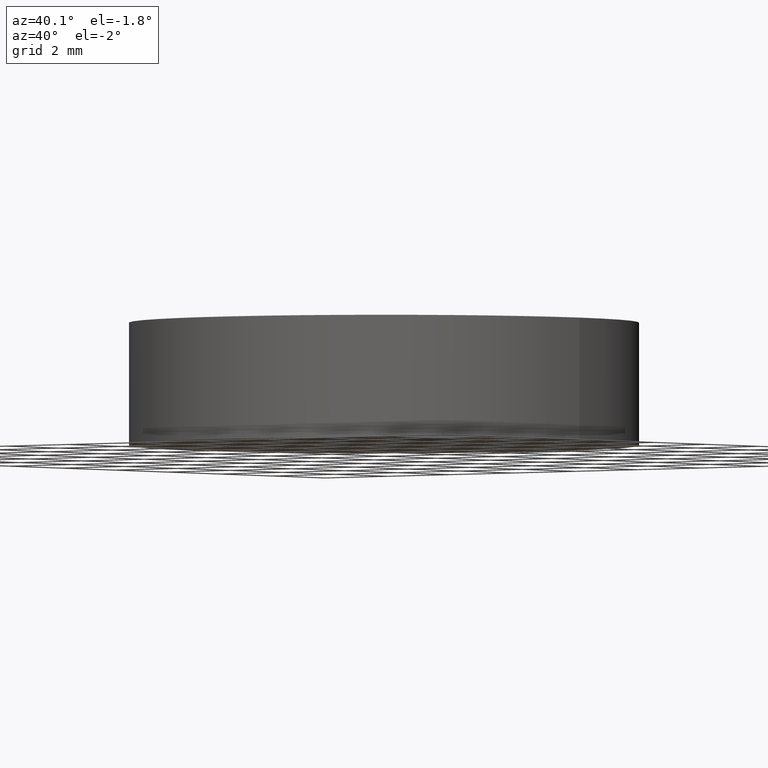
[diagram: clean part render]
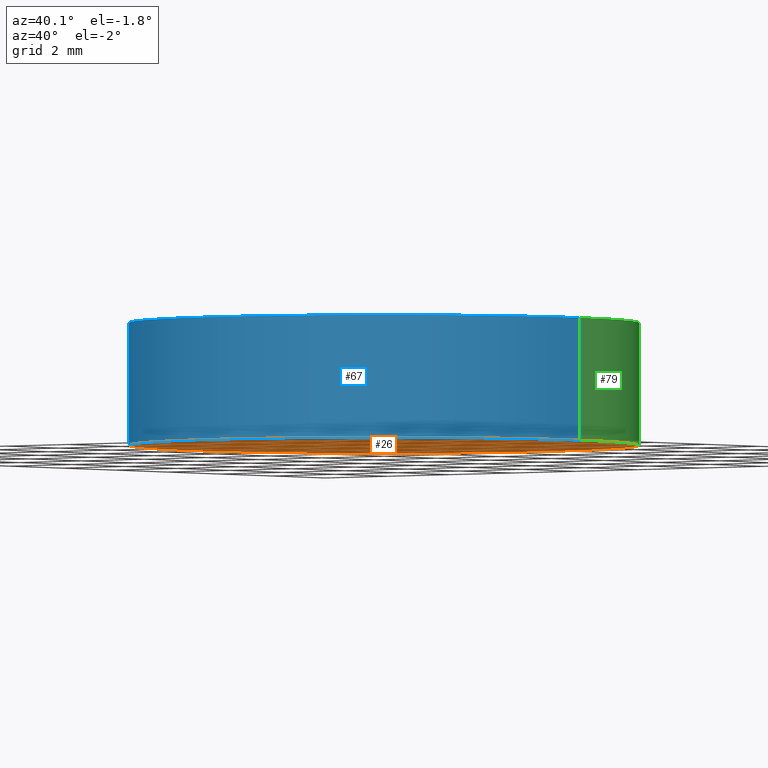
[diagram: same view with three faces highlighted in distinct colors, each labeled with its STEP entity id]
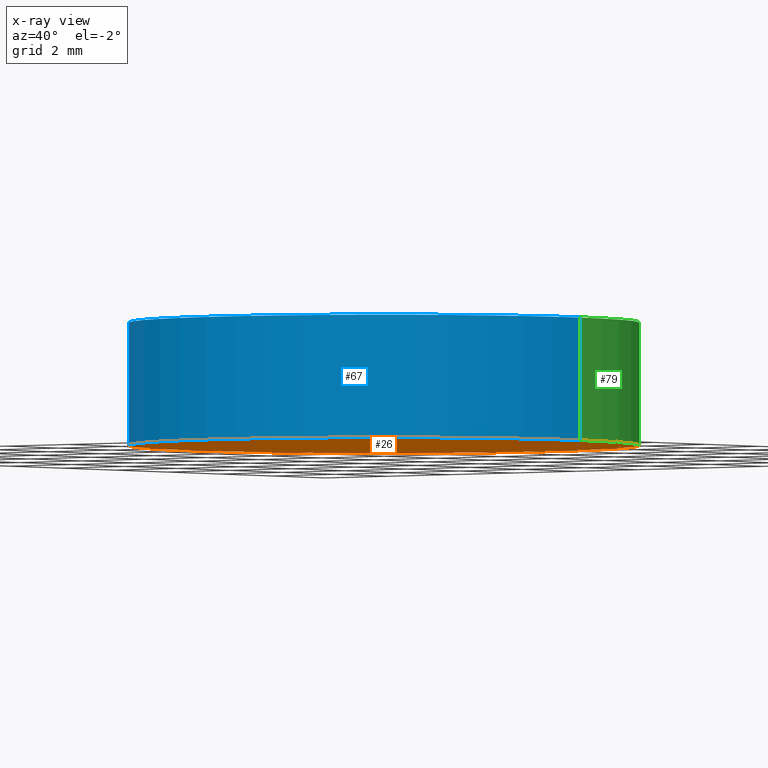
[diagram: x-ray of the same camera — body ghosted, the three highlighted faces saturated]
A machine part, auxiliary view with three faces highlighted in distinct colors.
The next image is the same camera in x-ray (body ghosted, the three faces saturated) — at least one of them is partly hidden behind the body in this view.
Their STEP definitions:

[orange] entity #26 — the highlighted planar face has unit normal (0, 0, 1).
#6 = AXIS2_PLACEMENT_3D ( 'NONE', #46, #34, #118 ) ;
#19 = DIRECTION ( 'NONE',  ( 1.000000000000000000, 0.0000000000000000000, 0.0000000000000000000 ) ) ;
#20 = CIRCLE ( 'NONE', #139, 6.250000000000000000 ) ;
#26 = ADVANCED_FACE ( 'NONE', ( #99 ), #55, .F. ) ;
#27 = CARTESIAN_POINT ( 'NONE',  ( 0.0000000000000000000, 0.0000000000000000000, 0.0000000000000000000 ) ) ;
#28 = CIRCLE ( 'NONE', #86, 6.250000000000000000 ) ;
#34 = DIRECTION ( 'NONE',  ( 0.0000000000000000000, 0.0000000000000000000, 1.000000000000000000 ) ) ;
#43 = CARTESIAN_POINT ( 'NONE',  ( 0.0000000000000000000, 0.0000000000000000000, 0.0000000000000000000 ) ) ;
#46 = CARTESIAN_POINT ( 'NONE',  ( 0.0000000000000000000, 0.0000000000000000000, 0.0000000000000000000 ) ) ;
#55 = PLANE ( 'NONE',  #6 ) ;
#56 = EDGE_LOOP ( 'NONE', ( #108, #73 ) ) ;
#57 = EDGE_CURVE ( 'NONE', #134, #82, #20, .T. ) ;
#73 = ORIENTED_EDGE ( 'NONE', *, *, #104, .F. ) ;
#78 = CARTESIAN_POINT ( 'NONE',  ( 6.250000000000000000, 7.654042494670957600E-016, 0.0000000000000000000 ) ) ;
#82 = VERTEX_POINT ( 'NONE', #78 ) ;
#86 = AXIS2_PLACEMENT_3D ( 'NONE', #43, #114, #102 ) ;
#92 = DIRECTION ( 'NONE',  ( 0.0000000000000000000, 0.0000000000000000000, 1.000000000000000000 ) ) ;
#99 = FACE_OUTER_BOUND ( 'NONE', #56, .T. ) ;
#102 = DIRECTION ( 'NONE',  ( 1.000000000000000000, 0.0000000000000000000, 0.0000000000000000000 ) ) ;
#104 = EDGE_CURVE ( 'NONE', #82, #134, #28, .T. ) ;
#108 = ORIENTED_EDGE ( 'NONE', *, *, #57, .F. ) ;
#114 = DIRECTION ( 'NONE',  ( 0.0000000000000000000, 0.0000000000000000000, 1.000000000000000000 ) ) ;
#118 = DIRECTION ( 'NONE',  ( 1.000000000000000000, 0.0000000000000000000, -0.0000000000000000000 ) ) ;
#134 = VERTEX_POINT ( 'NONE', #137 ) ;
#137 = CARTESIAN_POINT ( 'NONE',  ( -6.250000000000000000, 0.0000000000000000000, 0.0000000000000000000 ) ) ;
#139 = AXIS2_PLACEMENT_3D ( 'NONE', #27, #92, #19 ) ;

[blue] entity #67 — the highlighted cylindrical surface (partial cylindrical patch) has radius 6.25 mm, axis along (-0, -0, -1).
#7 = CIRCLE ( 'NONE', #58, 6.250000000000000000 ) ;
#11 = EDGE_CURVE ( 'NONE', #109, #134, #133, .T. ) ;
#14 = ORIENTED_EDGE ( 'NONE', *, *, #74, .F. ) ;
#19 = DIRECTION ( 'NONE',  ( 1.000000000000000000, 0.0000000000000000000, 0.0000000000000000000 ) ) ;
#20 = CIRCLE ( 'NONE', #139, 6.250000000000000000 ) ;
#21 = LINE ( 'NONE', #105, #110 ) ;
#25 = DIRECTION ( 'NONE',  ( 0.0000000000000000000, 0.0000000000000000000, 1.000000000000000000 ) ) ;
#27 = CARTESIAN_POINT ( 'NONE',  ( 0.0000000000000000000, 0.0000000000000000000, 0.0000000000000000000 ) ) ;
#36 = DIRECTION ( 'NONE',  ( -0.0000000000000000000, -0.0000000000000000000, -1.000000000000000000 ) ) ;
#44 = CARTESIAN_POINT ( 'NONE',  ( 6.250000000000000000, 7.654042494670957600E-016, 3.000000000000000000 ) ) ;
#45 = AXIS2_PLACEMENT_3D ( 'NONE', #128, #66, #129 ) ;
#48 = VERTEX_POINT ( 'NONE', #44 ) ;
#51 = ORIENTED_EDGE ( 'NONE', *, *, #64, .F. ) ;
#54 = CARTESIAN_POINT ( 'NONE',  ( -6.250000000000000000, 0.0000000000000000000, 3.000000000000000000 ) ) ;
#57 = EDGE_CURVE ( 'NONE', #134, #82, #20, .T. ) ;
#58 = AXIS2_PLACEMENT_3D ( 'NONE', #103, #25, #91 ) ;
#64 = EDGE_CURVE ( 'NONE', #48, #82, #21, .T. ) ;
#66 = DIRECTION ( 'NONE',  ( -0.0000000000000000000, -0.0000000000000000000, -1.000000000000000000 ) ) ;
#67 = ADVANCED_FACE ( 'NONE', ( #107 ), #80, .T. ) ;
#70 = DIRECTION ( 'NONE',  ( -0.0000000000000000000, -0.0000000000000000000, -1.000000000000000000 ) ) ;
#72 = VECTOR ( 'NONE', #70, 1000.000000000000000 ) ;
#74 = EDGE_CURVE ( 'NONE', #109, #48, #7, .T. ) ;
#78 = CARTESIAN_POINT ( 'NONE',  ( 6.250000000000000000, 7.654042494670957600E-016, 0.0000000000000000000 ) ) ;
#80 = CYLINDRICAL_SURFACE ( 'NONE', #45, 6.250000000000000000 ) ;
#82 = VERTEX_POINT ( 'NONE', #78 ) ;
#88 = EDGE_LOOP ( 'NONE', ( #51, #14, #97, #96 ) ) ;
#91 = DIRECTION ( 'NONE',  ( 1.000000000000000000, 0.0000000000000000000, 0.0000000000000000000 ) ) ;
#92 = DIRECTION ( 'NONE',  ( 0.0000000000000000000, 0.0000000000000000000, 1.000000000000000000 ) ) ;
#95 = CARTESIAN_POINT ( 'NONE',  ( -6.250000000000000000, 0.0000000000000000000, 3.000000000000000000 ) ) ;
#96 = ORIENTED_EDGE ( 'NONE', *, *, #57, .T. ) ;
#97 = ORIENTED_EDGE ( 'NONE', *, *, #11, .T. ) ;
#103 = CARTESIAN_POINT ( 'NONE',  ( 0.0000000000000000000, 0.0000000000000000000, 3.000000000000000000 ) ) ;
#105 = CARTESIAN_POINT ( 'NONE',  ( 6.250000000000000000, 7.654042494670957600E-016, 3.000000000000000000 ) ) ;
#107 = FACE_OUTER_BOUND ( 'NONE', #88, .T. ) ;
#109 = VERTEX_POINT ( 'NONE', #54 ) ;
#110 = VECTOR ( 'NONE', #36, 1000.000000000000000 ) ;
#128 = CARTESIAN_POINT ( 'NONE',  ( 0.0000000000000000000, 0.0000000000000000000, 3.000000000000000000 ) ) ;
#129 = DIRECTION ( 'NONE',  ( -1.000000000000000000, 0.0000000000000000000, 0.0000000000000000000 ) ) ;
#133 = LINE ( 'NONE', #95, #72 ) ;
#134 = VERTEX_POINT ( 'NONE', #137 ) ;
#137 = CARTESIAN_POINT ( 'NONE',  ( -6.250000000000000000, 0.0000000000000000000, 0.0000000000000000000 ) ) ;
#139 = AXIS2_PLACEMENT_3D ( 'NONE', #27, #92, #19 ) ;

[green] entity #79 — the highlighted cylindrical surface (partial cylindrical patch) has radius 6.25 mm, axis along (-0, -0, -1).
#5 = ORIENTED_EDGE ( 'NONE', *, *, #127, .F. ) ;
#11 = EDGE_CURVE ( 'NONE', #109, #134, #133, .T. ) ;
#21 = LINE ( 'NONE', #105, #110 ) ;
#28 = CIRCLE ( 'NONE', #86, 6.250000000000000000 ) ;
#29 = AXIS2_PLACEMENT_3D ( 'NONE', #123, #42, #113 ) ;
#33 = EDGE_LOOP ( 'NONE', ( #5, #130, #39, #60 ) ) ;
#35 = DIRECTION ( 'NONE',  ( -1.000000000000000000, 0.0000000000000000000, 0.0000000000000000000 ) ) ;
#36 = DIRECTION ( 'NONE',  ( -0.0000000000000000000, -0.0000000000000000000, -1.000000000000000000 ) ) ;
#39 = ORIENTED_EDGE ( 'NONE', *, *, #104, .T. ) ;
#42 = DIRECTION ( 'NONE',  ( 0.0000000000000000000, 0.0000000000000000000, 1.000000000000000000 ) ) ;
#43 = CARTESIAN_POINT ( 'NONE',  ( 0.0000000000000000000, 0.0000000000000000000, 0.0000000000000000000 ) ) ;
#44 = CARTESIAN_POINT ( 'NONE',  ( 6.250000000000000000, 7.654042494670957600E-016, 3.000000000000000000 ) ) ;
#48 = VERTEX_POINT ( 'NONE', #44 ) ;
#54 = CARTESIAN_POINT ( 'NONE',  ( -6.250000000000000000, 0.0000000000000000000, 3.000000000000000000 ) ) ;
#60 = ORIENTED_EDGE ( 'NONE', *, *, #11, .F. ) ;
#61 = FACE_OUTER_BOUND ( 'NONE', #33, .T. ) ;
#64 = EDGE_CURVE ( 'NONE', #48, #82, #21, .T. ) ;
#69 = AXIS2_PLACEMENT_3D ( 'NONE', #116, #125, #35 ) ;
#70 = DIRECTION ( 'NONE',  ( -0.0000000000000000000, -0.0000000000000000000, -1.000000000000000000 ) ) ;
#72 = VECTOR ( 'NONE', #70, 1000.000000000000000 ) ;
#78 = CARTESIAN_POINT ( 'NONE',  ( 6.250000000000000000, 7.654042494670957600E-016, 0.0000000000000000000 ) ) ;
#79 = ADVANCED_FACE ( 'NONE', ( #61 ), #85, .T. ) ;
#82 = VERTEX_POINT ( 'NONE', #78 ) ;
#85 = CYLINDRICAL_SURFACE ( 'NONE', #69, 6.250000000000000000 ) ;
#86 = AXIS2_PLACEMENT_3D ( 'NONE', #43, #114, #102 ) ;
#95 = CARTESIAN_POINT ( 'NONE',  ( -6.250000000000000000, 0.0000000000000000000, 3.000000000000000000 ) ) ;
#102 = DIRECTION ( 'NONE',  ( 1.000000000000000000, 0.0000000000000000000, 0.0000000000000000000 ) ) ;
#104 = EDGE_CURVE ( 'NONE', #82, #134, #28, .T. ) ;
#105 = CARTESIAN_POINT ( 'NONE',  ( 6.250000000000000000, 7.654042494670957600E-016, 3.000000000000000000 ) ) ;
#109 = VERTEX_POINT ( 'NONE', #54 ) ;
#110 = VECTOR ( 'NONE', #36, 1000.000000000000000 ) ;
#113 = DIRECTION ( 'NONE',  ( 1.000000000000000000, 0.0000000000000000000, 0.0000000000000000000 ) ) ;
#114 = DIRECTION ( 'NONE',  ( 0.0000000000000000000, 0.0000000000000000000, 1.000000000000000000 ) ) ;
#116 = CARTESIAN_POINT ( 'NONE',  ( 0.0000000000000000000, 0.0000000000000000000, 3.000000000000000000 ) ) ;
#117 = CIRCLE ( 'NONE', #29, 6.250000000000000000 ) ;
#123 = CARTESIAN_POINT ( 'NONE',  ( 0.0000000000000000000, 0.0000000000000000000, 3.000000000000000000 ) ) ;
#125 = DIRECTION ( 'NONE',  ( -0.0000000000000000000, -0.0000000000000000000, -1.000000000000000000 ) ) ;
#127 = EDGE_CURVE ( 'NONE', #48, #109, #117, .T. ) ;
#130 = ORIENTED_EDGE ( 'NONE', *, *, #64, .T. ) ;
#133 = LINE ( 'NONE', #95, #72 ) ;
#134 = VERTEX_POINT ( 'NONE', #137 ) ;
#137 = CARTESIAN_POINT ( 'NONE',  ( -6.250000000000000000, 0.0000000000000000000, 0.0000000000000000000 ) ) ;